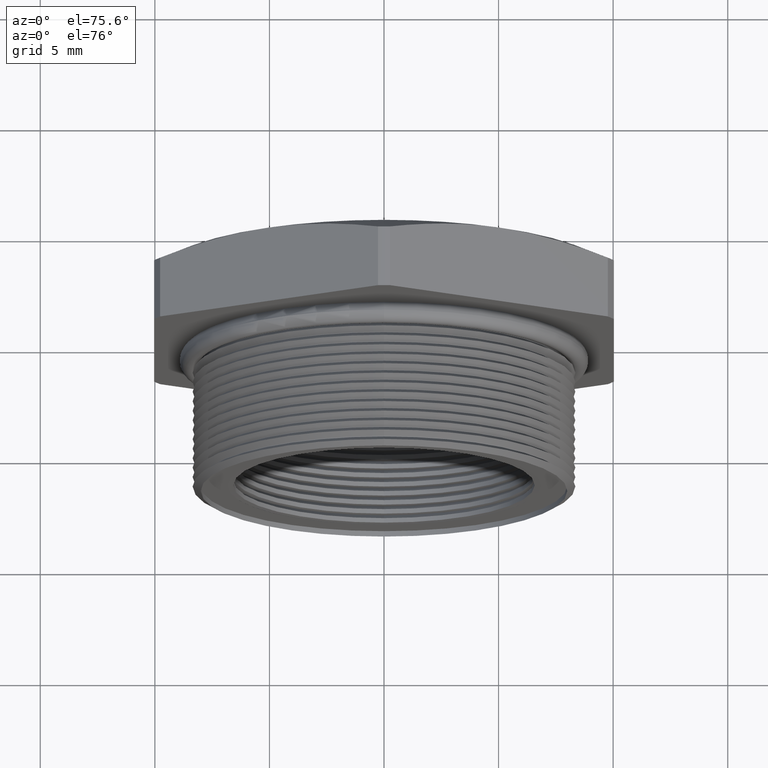
[diagram: clean part render]
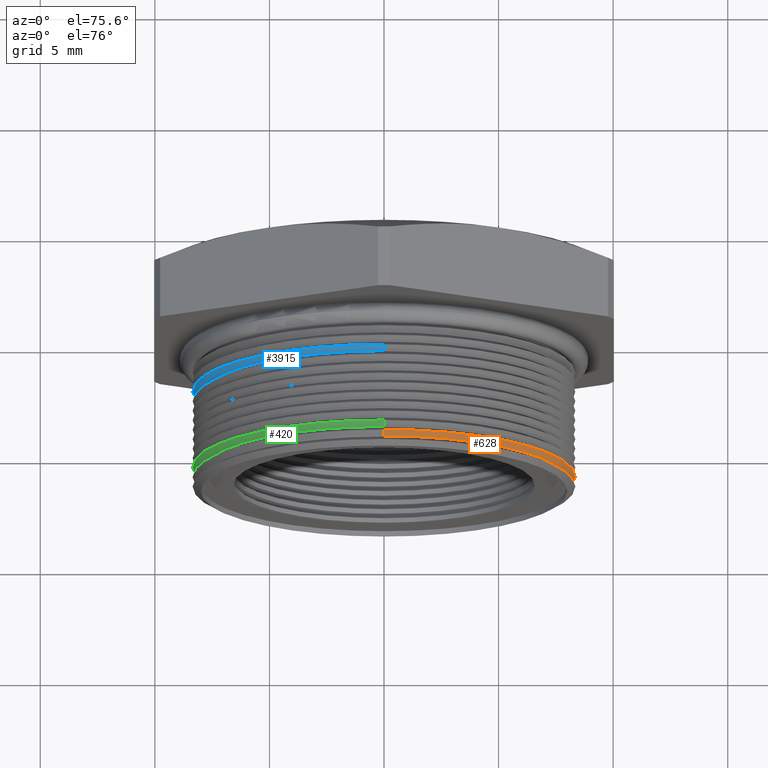
[diagram: same view with three faces highlighted in distinct colors, each labeled with its STEP entity id]
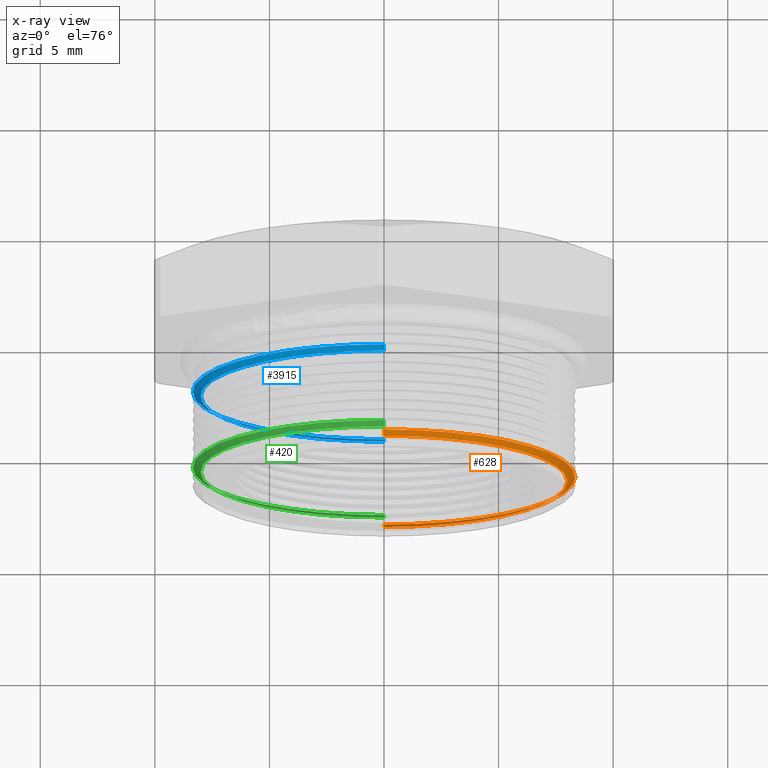
[diagram: x-ray of the same camera — body ghosted, the three highlighted faces saturated]
A machine part, auxiliary view with three faces highlighted in distinct colors.
The next image is the same camera in x-ray (body ghosted, the three faces saturated) — at least one of them is partly hidden behind the body in this view.
Their STEP definitions:

[orange] entity #628 — the highlighted conical surface has half-angle 60 deg.
#601 = ORIENTED_EDGE ( 'NONE', *, *, #609, .F. ) ;
#602 = VERTEX_POINT ( 'NONE', #5686 ) ;
#603 = ORIENTED_EDGE ( 'NONE', *, *, #604, .T. ) ;
#604 = EDGE_CURVE ( 'NONE', #607, #602, #5747, .T. ) ;
#606 = VERTEX_POINT ( 'NONE', #5738 ) ;
#607 = VERTEX_POINT ( 'NONE', #5737 ) ;
#608 = VERTEX_POINT ( 'NONE', #5736 ) ;
#609 = EDGE_CURVE ( 'NONE', #608, #602, #5735, .T. ) ;
#612 = EDGE_CURVE ( 'NONE', #606, #607, #5724, .T. ) ;
#618 = ORIENTED_EDGE ( 'NONE', *, *, #612, .T. ) ;
#621 = EDGE_LOOP ( 'NONE', ( #618, #603, #601, #701 ) ) ;
#628 = ADVANCED_FACE ( 'NONE', ( #5757 ), #5756, .T. ) ;
#699 = EDGE_CURVE ( 'NONE', #606, #608, #5931, .T. ) ;
#701 = ORIENTED_EDGE ( 'NONE', *, *, #699, .F. ) ;
#5686 = CARTESIAN_POINT ( 'NONE',  ( 0.0000000000000000000, 0.05275489058294798000, -0.3287738815610546400 ) ) ;
#5719 = DIRECTION ( 'NONE',  ( 0.0000000000000000000, 0.0000000000000000000, 1.000000000000000000 ) ) ;
#5721 = DIRECTION ( 'NONE',  ( -0.0000000000000000000, 1.000000000000000000, -0.0000000000000000000 ) ) ;
#5722 = CARTESIAN_POINT ( 'NONE',  ( 0.0000000000000000000, 0.04480253635588703900, 0.0000000000000000000 ) ) ;
#5723 = AXIS2_PLACEMENT_3D ( 'NONE', #5722, #5721, #5719 ) ;
#5724 = CIRCLE ( 'NONE', #5723, 0.3150000000000000000 ) ;
#5731 = DIRECTION ( 'NONE',  ( 0.0000000000000000000, 0.0000000000000000000, 1.000000000000000000 ) ) ;
#5732 = DIRECTION ( 'NONE',  ( -0.0000000000000000000, 1.000000000000000000, -0.0000000000000000000 ) ) ;
#5733 = CARTESIAN_POINT ( 'NONE',  ( 0.0000000000000000000, 0.05275489058294798000, 0.0000000000000000000 ) ) ;
#5734 = AXIS2_PLACEMENT_3D ( 'NONE', #5733, #5732, #5731 ) ;
#5735 = CIRCLE ( 'NONE', #5734, 0.3287738815610546400 ) ;
#5736 = CARTESIAN_POINT ( 'NONE',  ( 4.026318816969966200E-017, 0.05275489058294798000, 0.3287738815610546400 ) ) ;
#5737 = CARTESIAN_POINT ( 'NONE',  ( 0.0000000000000000000, 0.04480253635588703900, -0.3150000000000000000 ) ) ;
#5738 = CARTESIAN_POINT ( 'NONE',  ( 3.857637417314162700E-017, 0.04480253635588703900, 0.3150000000000000000 ) ) ;
#5744 = DIRECTION ( 'NONE',  ( 1.060575238724906300E-016, 0.5000000000000008900, -0.8660254037844380400 ) ) ;
#5745 = VECTOR ( 'NONE', #5744, 39.37007874015748100 ) ;
#5746 = CARTESIAN_POINT ( 'NONE',  ( 4.026318816969965600E-017, 0.05275489058294798000, -0.3287738815610546400 ) ) ;
#5747 = LINE ( 'NONE', #5746, #5745 ) ;
#5750 = DIRECTION ( 'NONE',  ( 0.0000000000000000000, 0.0000000000000000000, 1.000000000000000000 ) ) ;
#5751 = DIRECTION ( 'NONE',  ( -0.0000000000000000000, 1.000000000000000000, -0.0000000000000000000 ) ) ;
#5752 = CARTESIAN_POINT ( 'NONE',  ( 0.0000000000000000000, 0.05275489058294798000, 0.0000000000000000000 ) ) ;
#5753 = AXIS2_PLACEMENT_3D ( 'NONE', #5752, #5751, #5750 ) ;
#5756 = CONICAL_SURFACE ( 'NONE', #5753, 0.3287738815610546400, 1.047197551196596700 ) ;
#5757 = FACE_OUTER_BOUND ( 'NONE', #621, .T. ) ;
#5928 = DIRECTION ( 'NONE',  ( 0.0000000000000000000, 0.5000000000000008900, 0.8660254037844380400 ) ) ;
#5929 = VECTOR ( 'NONE', #5928, 39.37007874015748100 ) ;
#5930 = CARTESIAN_POINT ( 'NONE',  ( 0.0000000000000000000, 0.05275489058294798000, 0.3287738815610546400 ) ) ;
#5931 = LINE ( 'NONE', #5930, #5929 ) ;

[blue] entity #3915 — the highlighted conical surface has half-angle 60 deg.
#265 = EDGE_CURVE ( 'NONE', #3328, #3330, #5101, .T. ) ;
#777 = CARTESIAN_POINT ( 'NONE',  ( 0.0000000000000000000, 0.2039548905829480000, -0.3287738815610546400 ) ) ;
#854 = CARTESIAN_POINT ( 'NONE',  ( 3.857637417314162700E-017, 0.1960025363558870500, 0.3150000000000000000 ) ) ;
#855 = CARTESIAN_POINT ( 'NONE',  ( 0.0000000000000000000, 0.1960025363558870500, -0.3150000000000000000 ) ) ;
#857 = DIRECTION ( 'NONE',  ( 1.060575238724906300E-016, 0.5000000000000008900, -0.8660254037844380400 ) ) ;
#858 = VECTOR ( 'NONE', #857, 39.37007874015748100 ) ;
#859 = CARTESIAN_POINT ( 'NONE',  ( 4.026318816969965600E-017, 0.2039548905829480000, -0.3287738815610546400 ) ) ;
#860 = LINE ( 'NONE', #859, #858 ) ;
#865 = CARTESIAN_POINT ( 'NONE',  ( 4.026318816969966200E-017, 0.2039548905829480000, 0.3287738815610546400 ) ) ;
#903 = DIRECTION ( 'NONE',  ( 0.0000000000000000000, 0.5000000000000008900, 0.8660254037844380400 ) ) ;
#904 = VECTOR ( 'NONE', #903, 39.37007874015748100 ) ;
#905 = CARTESIAN_POINT ( 'NONE',  ( 0.0000000000000000000, 0.2039548905829480000, 0.3287738815610546400 ) ) ;
#906 = LINE ( 'NONE', #905, #904 ) ;
#1765 = DIRECTION ( 'NONE',  ( 0.0000000000000000000, 0.0000000000000000000, 1.000000000000000000 ) ) ;
#1766 = DIRECTION ( 'NONE',  ( -0.0000000000000000000, 1.000000000000000000, -0.0000000000000000000 ) ) ;
#1768 = CARTESIAN_POINT ( 'NONE',  ( 0.0000000000000000000, 0.2039548905829480000, 0.0000000000000000000 ) ) ;
#1769 = AXIS2_PLACEMENT_3D ( 'NONE', #1768, #1766, #1765 ) ;
#1770 = CIRCLE ( 'NONE', #1769, 0.3287738815610546400 ) ;
#1771 = DIRECTION ( 'NONE',  ( 0.0000000000000000000, 0.0000000000000000000, 1.000000000000000000 ) ) ;
#1772 = DIRECTION ( 'NONE',  ( -0.0000000000000000000, 1.000000000000000000, -0.0000000000000000000 ) ) ;
#1773 = CARTESIAN_POINT ( 'NONE',  ( 0.0000000000000000000, 0.2039548905829480000, 0.0000000000000000000 ) ) ;
#1774 = AXIS2_PLACEMENT_3D ( 'NONE', #1773, #1772, #1771 ) ;
#1776 = CONICAL_SURFACE ( 'NONE', #1774, 0.3287738815610546400, 1.047197551196596700 ) ;
#1781 = FACE_OUTER_BOUND ( 'NONE', #3911, .T. ) ;
#3302 = VERTEX_POINT ( 'NONE', #777 ) ;
#3325 = EDGE_CURVE ( 'NONE', #3328, #3302, #860, .T. ) ;
#3328 = VERTEX_POINT ( 'NONE', #855 ) ;
#3330 = VERTEX_POINT ( 'NONE', #854 ) ;
#3362 = VERTEX_POINT ( 'NONE', #865 ) ;
#3371 = EDGE_CURVE ( 'NONE', #3330, #3362, #906, .T. ) ;
#3901 = ORIENTED_EDGE ( 'NONE', *, *, #3371, .T. ) ;
#3902 = ORIENTED_EDGE ( 'NONE', *, *, #265, .T. ) ;
#3905 = ORIENTED_EDGE ( 'NONE', *, *, #3917, .F. ) ;
#3906 = ORIENTED_EDGE ( 'NONE', *, *, #3325, .F. ) ;
#3911 = EDGE_LOOP ( 'NONE', ( #3906, #3902, #3901, #3905 ) ) ;
#3915 = ADVANCED_FACE ( 'NONE', ( #1781 ), #1776, .T. ) ;
#3917 = EDGE_CURVE ( 'NONE', #3302, #3362, #1770, .T. ) ;
#5097 = DIRECTION ( 'NONE',  ( 0.0000000000000000000, 0.0000000000000000000, 1.000000000000000000 ) ) ;
#5098 = DIRECTION ( 'NONE',  ( -0.0000000000000000000, 1.000000000000000000, -0.0000000000000000000 ) ) ;
#5099 = CARTESIAN_POINT ( 'NONE',  ( 0.0000000000000000000, 0.1960025363558870500, 0.0000000000000000000 ) ) ;
#5100 = AXIS2_PLACEMENT_3D ( 'NONE', #5099, #5098, #5097 ) ;
#5101 = CIRCLE ( 'NONE', #5100, 0.3150000000000000000 ) ;

[green] entity #420 — the highlighted conical surface has half-angle 60 deg.
#306 = EDGE_CURVE ( 'NONE', #631, #623, #5151, .T. ) ;
#405 = EDGE_LOOP ( 'NONE', ( #406, #3937, #3943, #3944 ) ) ;
#406 = ORIENTED_EDGE ( 'NONE', *, *, #617, .F. ) ;
#420 = ADVANCED_FACE ( 'NONE', ( #5399 ), #5394, .T. ) ;
#424 = EDGE_CURVE ( 'NONE', #616, #611, #5380, .T. ) ;
#610 = EDGE_CURVE ( 'NONE', #623, #611, #5729, .T. ) ;
#611 = VERTEX_POINT ( 'NONE', #5725 ) ;
#616 = VERTEX_POINT ( 'NONE', #5717 ) ;
#617 = EDGE_CURVE ( 'NONE', #631, #616, #5783, .T. ) ;
#623 = VERTEX_POINT ( 'NONE', #5769 ) ;
#631 = VERTEX_POINT ( 'NONE', #5815 ) ;
#3937 = ORIENTED_EDGE ( 'NONE', *, *, #306, .T. ) ;
#3943 = ORIENTED_EDGE ( 'NONE', *, *, #610, .T. ) ;
#3944 = ORIENTED_EDGE ( 'NONE', *, *, #424, .F. ) ;
#5147 = DIRECTION ( 'NONE',  ( 0.0000000000000000000, 0.0000000000000000000, 1.000000000000000000 ) ) ;
#5148 = DIRECTION ( 'NONE',  ( -0.0000000000000000000, 1.000000000000000000, -0.0000000000000000000 ) ) ;
#5149 = CARTESIAN_POINT ( 'NONE',  ( 0.0000000000000000000, 0.06160253635588704800, 0.0000000000000000000 ) ) ;
#5150 = AXIS2_PLACEMENT_3D ( 'NONE', #5149, #5148, #5147 ) ;
#5151 = CIRCLE ( 'NONE', #5150, 0.3150000000000000000 ) ;
#5376 = DIRECTION ( 'NONE',  ( 0.0000000000000000000, 0.0000000000000000000, 1.000000000000000000 ) ) ;
#5377 = DIRECTION ( 'NONE',  ( -0.0000000000000000000, 1.000000000000000000, -0.0000000000000000000 ) ) ;
#5378 = CARTESIAN_POINT ( 'NONE',  ( 0.0000000000000000000, 0.06955489058294799000, 0.0000000000000000000 ) ) ;
#5379 = AXIS2_PLACEMENT_3D ( 'NONE', #5378, #5377, #5376 ) ;
#5380 = CIRCLE ( 'NONE', #5379, 0.3287738815610546400 ) ;
#5390 = DIRECTION ( 'NONE',  ( 0.0000000000000000000, 0.0000000000000000000, 1.000000000000000000 ) ) ;
#5391 = DIRECTION ( 'NONE',  ( -0.0000000000000000000, 1.000000000000000000, -0.0000000000000000000 ) ) ;
#5392 = CARTESIAN_POINT ( 'NONE',  ( 0.0000000000000000000, 0.06955489058294799000, 0.0000000000000000000 ) ) ;
#5393 = AXIS2_PLACEMENT_3D ( 'NONE', #5392, #5391, #5390 ) ;
#5394 = CONICAL_SURFACE ( 'NONE', #5393, 0.3287738815610546400, 1.047197551196596700 ) ;
#5399 = FACE_OUTER_BOUND ( 'NONE', #405, .T. ) ;
#5717 = CARTESIAN_POINT ( 'NONE',  ( 0.0000000000000000000, 0.06955489058294799000, -0.3287738815610546400 ) ) ;
#5725 = CARTESIAN_POINT ( 'NONE',  ( 4.026318816969966200E-017, 0.06955489058294799000, 0.3287738815610546400 ) ) ;
#5726 = DIRECTION ( 'NONE',  ( 0.0000000000000000000, 0.5000000000000008900, 0.8660254037844380400 ) ) ;
#5727 = VECTOR ( 'NONE', #5726, 39.37007874015748100 ) ;
#5728 = CARTESIAN_POINT ( 'NONE',  ( 0.0000000000000000000, 0.06955489058294799000, 0.3287738815610546400 ) ) ;
#5729 = LINE ( 'NONE', #5728, #5727 ) ;
#5769 = CARTESIAN_POINT ( 'NONE',  ( 3.857637417314162700E-017, 0.06160253635588704800, 0.3150000000000000000 ) ) ;
#5780 = DIRECTION ( 'NONE',  ( 1.060575238724906300E-016, 0.5000000000000008900, -0.8660254037844380400 ) ) ;
#5781 = VECTOR ( 'NONE', #5780, 39.37007874015748100 ) ;
#5782 = CARTESIAN_POINT ( 'NONE',  ( 4.026318816969965600E-017, 0.06955489058294799000, -0.3287738815610546400 ) ) ;
#5783 = LINE ( 'NONE', #5782, #5781 ) ;
#5815 = CARTESIAN_POINT ( 'NONE',  ( 0.0000000000000000000, 0.06160253635588704800, -0.3150000000000000000 ) ) ;